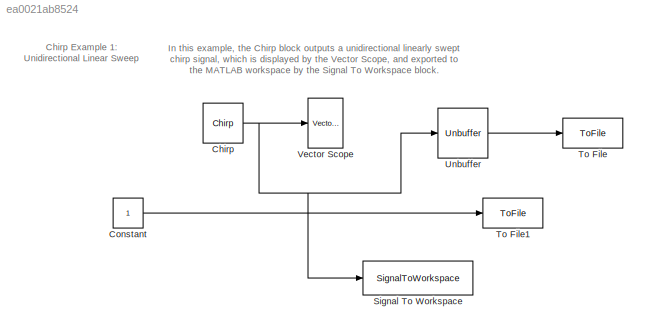
MODEL slx_ea0021ab8524
KIND model
BLOCK [Reference] Chirp  REF=dspsrcs4/Chirp
  Ports = [0, 1]
  SourceBlock = dspsrcs4/Chirp
  SourceType = Chirp
  Ts = 1/4096
  Tsweep = 10
  datatype = Double
  f0 = 1
  f1 = 250
  mode = Unidirectional
  phase = 0
  spf = 400
  sweep = Linear
  t1 = 10
BLOCK [Constant] Constant
BLOCK [SignalToWorkspace] Signal To Workspace
  CopyFcn = dspblkcopystw(gcbh);
  Decimation = 2
  MaxDataPoints = inf
  Ports = [1]
  VariableName = dsp_examples_yout
BLOCK [ToFile] To File
  Ports = [1]
BLOCK [ToFile] To File1
  Filename = untitled11.mat
  Ports = [1]
  SaveFormat = Timeseries
BLOCK [Unbuffer] Unbuffer
  Ports = [1, 1]
  SampleBasedProcessing = Same as frame based
BLOCK [Reference] Vector Scope  REF=dspsnks4/Vector
Scope
  AxisGrid = on
  AxisLegend = off
  AxisProperties = off
  AxisZoom = off
  DisplayProperties = off
  Domain = Time
  FigPos = [720 450 650 320]
  FrameNumber = on
  HorizSpan = 50
  InheritXIncr = on
  LineProperties = off
  Memory = off
  OpenScopeAtSimStart = on
  OpenScopeImmediately = off
  Ports = [1]
  ScopeProperties = on
  ShowPortLabels = off
  SourceBlock = dspsnks4/Vector\nScope
  SourceType = Vector Scope
  XAxisParamsVer = 6.9
  XIncr = 1
  XLabel = Time
  XLimit = Auto
  XMax = 1
  XMin = 0
  XRange = [0...Fs/2]
  XStart = 0
  XUnits = Hertz
  YLabel = Amplitude
  YMax = 10
  YMin = -10
  YUnits = dB
ANNOTATION (root): Chirp Example 1: Unidirectional Linear Sweep
ANNOTATION (root): In this example, the Chirp block outputs a unidirectional linearly swept chirp signal, which is displayed by the Vector Scope, and exported to the MATLAB workspace by the Signal To Workspace block.
NET Chirp:1 -> Signal To Workspace:1, Unbuffer:1, Vector Scope:1
LINE Constant:1 -> To File1:1
LINE Unbuffer:1 -> To File:1
note: NET lines group one-source signal fan-out (src -> all destinations, sorted); 1:1 wires keep LINE
